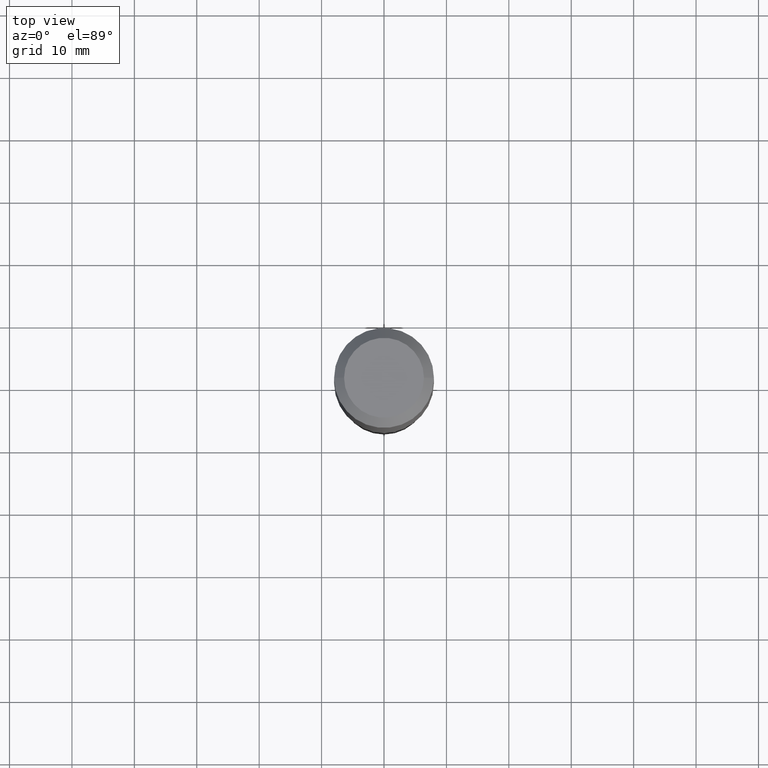
[diagram: clean part render]
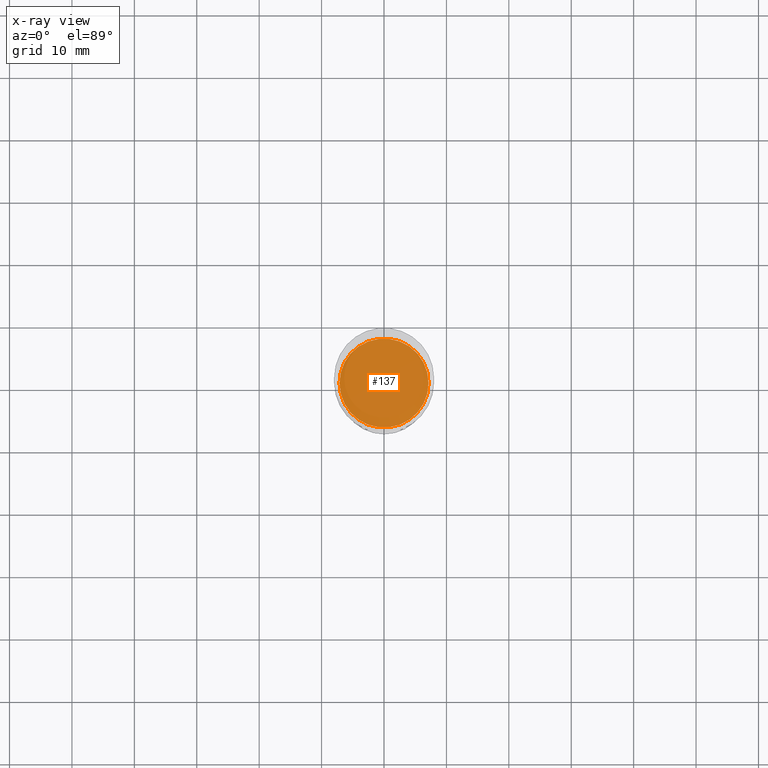
[diagram: x-ray — body ghosted, one internal face saturated and labeled with its STEP entity id]
A machine part, top view, then the same camera in x-ray: the body is ghosted and one INTERNAL B-rep face — a face not visible from any outside direction — is saturated and labeled: STEP entity #137.
In plain terms, the highlighted planar face has unit normal (-0, 0, 1).
Its self-contained STEP definition (entity closure, byte-faithful):
#5 = CIRCLE ( 'NONE', #58, 0.2807499999999999996 ) ;
#58 = AXIS2_PLACEMENT_3D ( 'NONE', #402, #136, #287 ) ;
#66 = CIRCLE ( 'NONE', #322, 0.2807499999999999996 ) ;
#69 = CARTESIAN_POINT ( 'NONE',  ( 0.2807499999999999996, -8.833447787273150424E-15, -1.968499999999999472 ) ) ;
#73 = DIRECTION ( 'NONE',  ( -2.445468806185136597E-29, 3.491481338843145583E-15, 1.000000000000000000 ) ) ;
#99 = DIRECTION ( 'NONE',  ( -2.438088387897960049E-29, 3.491481338843145188E-15, 1.000000000000000000 ) ) ;
#113 = EDGE_CURVE ( 'NONE', #222, #224, #5, .T. ) ;
#126 = AXIS2_PLACEMENT_3D ( 'NONE', #176, #99, #251 ) ;
#136 = DIRECTION ( 'NONE',  ( -2.445468806185136597E-29, 3.491481338843145583E-15, 1.000000000000000000 ) ) ;
#137 = ADVANCED_FACE ( 'NONE', ( #436 ), #293, .F. ) ;
#158 = EDGE_LOOP ( 'NONE', ( #411, #309 ) ) ;
#176 = CARTESIAN_POINT ( 'NONE',  ( 4.813905344975440153E-29, -6.872981015512730130E-15, -1.968499999999999472 ) ) ;
#178 = EDGE_CURVE ( 'NONE', #224, #222, #66, .T. ) ;
#222 = VERTEX_POINT ( 'NONE', #69 ) ;
#224 = VERTEX_POINT ( 'NONE', #482 ) ;
#251 = DIRECTION ( 'NONE',  ( 1.000000000000000000, -6.982962677686265922E-15, 4.876176775795935793E-29 ) ) ;
#266 = CARTESIAN_POINT ( 'NONE',  ( 4.813905344975440153E-29, -6.872981015512730130E-15, -1.968499999999999472 ) ) ;
#287 = DIRECTION ( 'NONE',  ( 1.000000000000000000, -6.982962677686268288E-15, 0.000000000000000000 ) ) ;
#293 = PLANE ( 'NONE',  #126 ) ;
#309 = ORIENTED_EDGE ( 'NONE', *, *, #178, .F. ) ;
#322 = AXIS2_PLACEMENT_3D ( 'NONE', #266, #73, #452 ) ;
#402 = CARTESIAN_POINT ( 'NONE',  ( 4.813905344975440153E-29, -6.872981015512730130E-15, -1.968499999999999472 ) ) ;
#411 = ORIENTED_EDGE ( 'NONE', *, *, #113, .F. ) ;
#436 = FACE_OUTER_BOUND ( 'NONE', #158, .T. ) ;
#452 = DIRECTION ( 'NONE',  ( 1.000000000000000000, -6.982962677686268288E-15, 0.000000000000000000 ) ) ;
#482 = CARTESIAN_POINT ( 'NONE',  ( -0.2807499999999999996, -4.875483057692138054E-15, -1.968499999999999472 ) ) ;